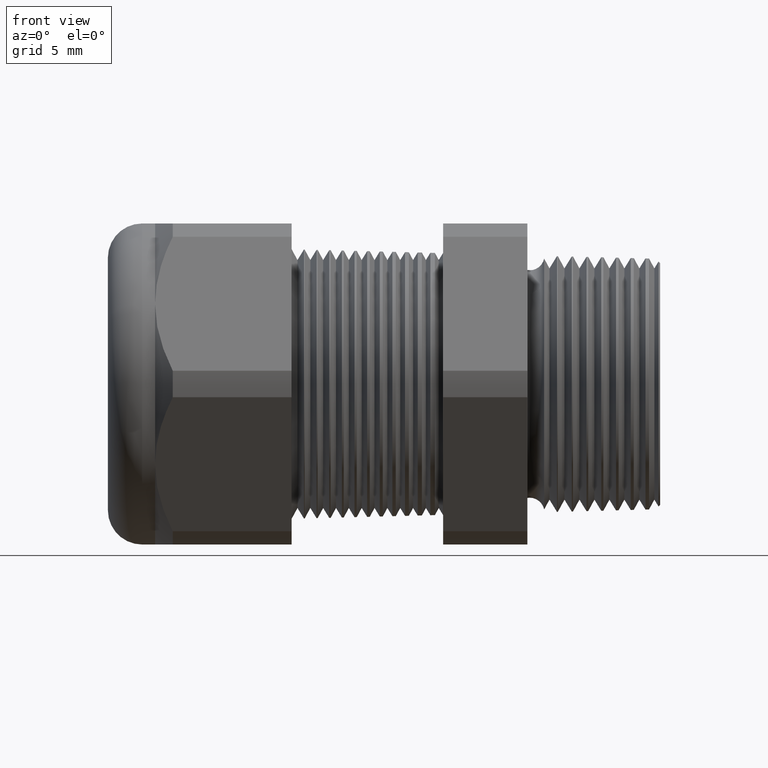
[diagram: clean part render]
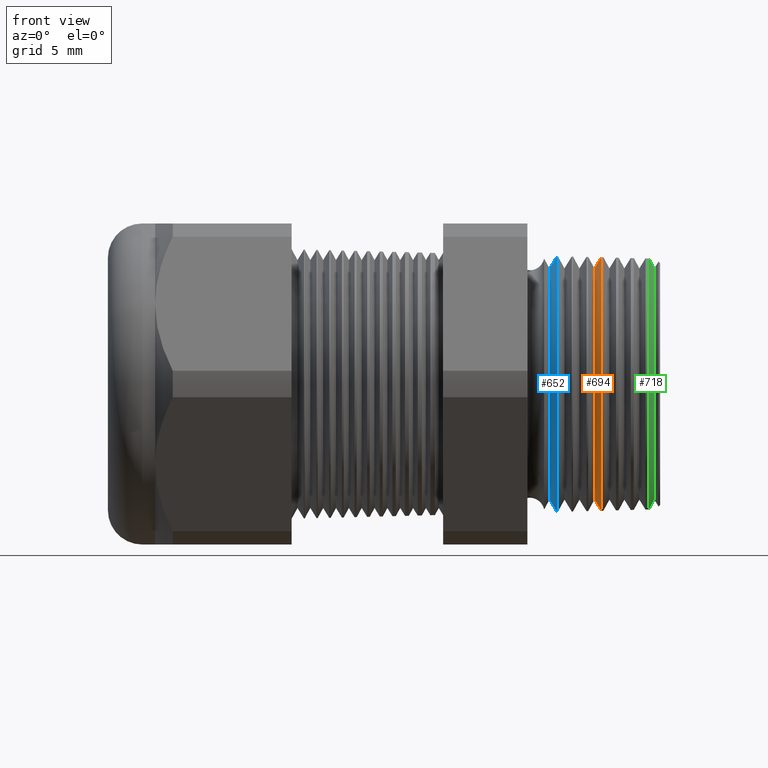
[diagram: same view with three faces highlighted in distinct colors, each labeled with its STEP entity id]
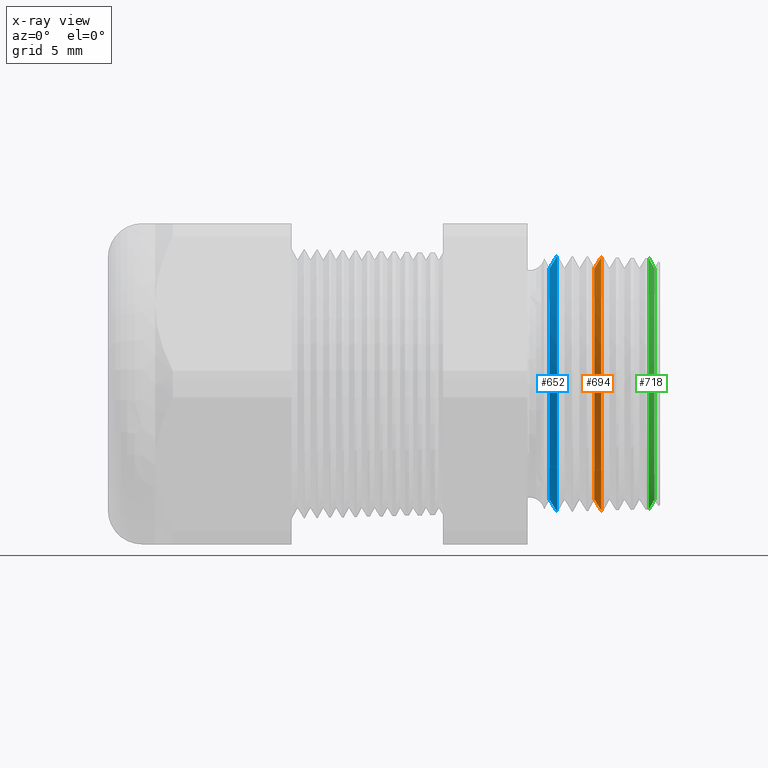
[diagram: x-ray of the same camera — body ghosted, the three highlighted faces saturated]
A machine part, front view with three faces highlighted in distinct colors.
The next image is the same camera in x-ray (body ghosted, the three faces saturated) — at least one of them is partly hidden behind the body in this view.
Their STEP definitions:

[orange] entity #694 — the highlighted conical surface has half-angle 58.5 deg.
#94 = EDGE_CURVE ( 'NONE', #1048, #1045, #1583, .T. ) ;
#691 = EDGE_CURVE ( 'NONE', #1017, #1016, #2470, .T. ) ;
#694 = ADVANCED_FACE ( 'NONE', ( #2466 ), #2465, .T. ) ;
#695 = EDGE_LOOP ( 'NONE', ( #696, #697, #747, #748 ) ) ;
#696 = ORIENTED_EDGE ( 'NONE', *, *, #1019, .F. ) ;
#697 = ORIENTED_EDGE ( 'NONE', *, *, #691, .T. ) ;
#747 = ORIENTED_EDGE ( 'NONE', *, *, #1050, .T. ) ;
#748 = ORIENTED_EDGE ( 'NONE', *, *, #94, .T. ) ;
#1016 = VERTEX_POINT ( 'NONE', #2996 ) ;
#1017 = VERTEX_POINT ( 'NONE', #3060 ) ;
#1019 = EDGE_CURVE ( 'NONE', #1017, #1045, #3059, .T. ) ;
#1045 = VERTEX_POINT ( 'NONE', #3083 ) ;
#1048 = VERTEX_POINT ( 'NONE', #3077 ) ;
#1050 = EDGE_CURVE ( 'NONE', #1016, #1048, #3076, .T. ) ;
#1579 = DIRECTION ( 'NONE',  ( 0.0000000000000000000, 0.0000000000000000000, -1.000000000000000000 ) ) ;
#1580 = DIRECTION ( 'NONE',  ( -1.000000000000000000, 0.0000000000000000000, 0.0000000000000000000 ) ) ;
#1581 = CARTESIAN_POINT ( 'NONE',  ( -0.1375819195166211300, 0.0000000000000000000, 0.0000000000000000000 ) ) ;
#1582 = AXIS2_PLACEMENT_3D ( 'NONE', #1581, #1580, #1579 ) ;
#1583 = CIRCLE ( 'NONE', #1582, 0.2960601360848354500 ) ;
#2460 = DIRECTION ( 'NONE',  ( 0.0000000000000000000, 0.0000000000000000000, -1.000000000000000000 ) ) ;
#2461 = DIRECTION ( 'NONE',  ( 1.000000000000000000, 0.0000000000000000000, 0.0000000000000000000 ) ) ;
#2462 = CARTESIAN_POINT ( 'NONE',  ( -0.1534707356790751800, 0.0000000000000000000, 0.0000000000000000000 ) ) ;
#2463 = AXIS2_PLACEMENT_3D ( 'NONE', #2462, #2461, #2460 ) ;
#2465 = CONICAL_SURFACE ( 'NONE', #2463, 0.2701319446236517000, 1.021017612416701600 ) ;
#2466 = FACE_OUTER_BOUND ( 'NONE', #695, .T. ) ;
#2467 = DIRECTION ( 'NONE',  ( 0.0000000000000000000, 0.0000000000000000000, -1.000000000000000000 ) ) ;
#2468 = DIRECTION ( 'NONE',  ( 1.000000000000000000, 0.0000000000000000000, 0.0000000000000000000 ) ) ;
#2469 = AXIS2_PLACEMENT_3D ( 'NONE', #2475, #2468, #2467 ) ;
#2470 = CIRCLE ( 'NONE', #2469, 0.2701319446236517000 ) ;
#2475 = CARTESIAN_POINT ( 'NONE',  ( -0.1534707356790751800, 0.0000000000000000000, 0.0000000000000000000 ) ) ;
#2996 = CARTESIAN_POINT ( 'NONE',  ( -0.1534707356790751800, 3.471800829982362700E-017, -0.2701319446236517000 ) ) ;
#3056 = DIRECTION ( 'NONE',  ( 0.5224985647159328100, 1.044183048100724200E-016, 0.8526401643541021700 ) ) ;
#3057 = VECTOR ( 'NONE', #3056, 39.37007874015748100 ) ;
#3058 = CARTESIAN_POINT ( 'NONE',  ( -0.1534707356790751800, 3.308162213308051400E-017, 0.2701319446236517000 ) ) ;
#3059 = LINE ( 'NONE', #3058, #3057 ) ;
#3060 = CARTESIAN_POINT ( 'NONE',  ( -0.1534707356790751800, 0.0000000000000000000, 0.2701319446236517000 ) ) ;
#3073 = DIRECTION ( 'NONE',  ( 0.5224985647159328100, 0.0000000000000000000, -0.8526401643541021700 ) ) ;
#3074 = VECTOR ( 'NONE', #3073, 39.37007874015748100 ) ;
#3075 = CARTESIAN_POINT ( 'NONE',  ( -0.1534707356790751800, 0.0000000000000000000, -0.2701319446236517000 ) ) ;
#3076 = LINE ( 'NONE', #3075, #3074 ) ;
#3077 = CARTESIAN_POINT ( 'NONE',  ( -0.1375819195166211300, 3.625690980114235700E-017, -0.2960601360848354500 ) ) ;
#3083 = CARTESIAN_POINT ( 'NONE',  ( -0.1375819195166211300, 0.0000000000000000000, 0.2960601360848354500 ) ) ;

[blue] entity #652 — the highlighted conical surface has half-angle 58.5 deg.
#649 = EDGE_CURVE ( 'NONE', #1122, #1121, #2402, .T. ) ;
#652 = ADVANCED_FACE ( 'NONE', ( #2397 ), #2396, .T. ) ;
#653 = EDGE_LOOP ( 'NONE', ( #654, #655, #656, #657 ) ) ;
#654 = ORIENTED_EDGE ( 'NONE', *, *, #1124, .F. ) ;
#655 = ORIENTED_EDGE ( 'NONE', *, *, #649, .T. ) ;
#656 = ORIENTED_EDGE ( 'NONE', *, *, #1130, .T. ) ;
#657 = ORIENTED_EDGE ( 'NONE', *, *, #4687, .T. ) ;
#1121 = VERTEX_POINT ( 'NONE', #3239 ) ;
#1122 = VERTEX_POINT ( 'NONE', #3238 ) ;
#1124 = EDGE_CURVE ( 'NONE', #1122, #1125, #3237, .T. ) ;
#1125 = VERTEX_POINT ( 'NONE', #3233 ) ;
#1128 = VERTEX_POINT ( 'NONE', #3227 ) ;
#1130 = EDGE_CURVE ( 'NONE', #1121, #1128, #3226, .T. ) ;
#2391 = DIRECTION ( 'NONE',  ( 0.0000000000000000000, 0.0000000000000000000, -1.000000000000000000 ) ) ;
#2392 = DIRECTION ( 'NONE',  ( 1.000000000000000000, 0.0000000000000000000, 0.0000000000000000000 ) ) ;
#2393 = CARTESIAN_POINT ( 'NONE',  ( -0.2584707356790751900, 0.0000000000000000000, 0.0000000000000000000 ) ) ;
#2394 = AXIS2_PLACEMENT_3D ( 'NONE', #2393, #2392, #2391 ) ;
#2396 = CONICAL_SURFACE ( 'NONE', #2394, 0.2701319446236517000, 1.021017612416701600 ) ;
#2397 = FACE_OUTER_BOUND ( 'NONE', #653, .T. ) ;
#2398 = DIRECTION ( 'NONE',  ( 0.0000000000000000000, 0.0000000000000000000, -1.000000000000000000 ) ) ;
#2399 = DIRECTION ( 'NONE',  ( 1.000000000000000000, 0.0000000000000000000, 0.0000000000000000000 ) ) ;
#2400 = CARTESIAN_POINT ( 'NONE',  ( -0.2584707356790751900, 0.0000000000000000000, 0.0000000000000000000 ) ) ;
#2401 = AXIS2_PLACEMENT_3D ( 'NONE', #2400, #2399, #2398 ) ;
#2402 = CIRCLE ( 'NONE', #2401, 0.2701319446236517000 ) ;
#3223 = DIRECTION ( 'NONE',  ( 0.5224985647159328100, 0.0000000000000000000, -0.8526401643541021700 ) ) ;
#3224 = VECTOR ( 'NONE', #3223, 39.37007874015748100 ) ;
#3225 = CARTESIAN_POINT ( 'NONE',  ( -0.2584707356790751900, 0.0000000000000000000, -0.2701319446236517000 ) ) ;
#3226 = LINE ( 'NONE', #3225, #3224 ) ;
#3227 = CARTESIAN_POINT ( 'NONE',  ( -0.2409236207239137100, 3.658831118766484200E-017, -0.2987662337674752400 ) ) ;
#3233 = CARTESIAN_POINT ( 'NONE',  ( -0.2409236207239137100, 0.0000000000000000000, 0.2987662337674752400 ) ) ;
#3234 = DIRECTION ( 'NONE',  ( 0.5224985647159328100, 1.044183048100724200E-016, 0.8526401643541021700 ) ) ;
#3235 = VECTOR ( 'NONE', #3234, 39.37007874015748100 ) ;
#3236 = CARTESIAN_POINT ( 'NONE',  ( -0.2584707356790751900, 3.308162213308051400E-017, 0.2701319446236517000 ) ) ;
#3237 = LINE ( 'NONE', #3236, #3235 ) ;
#3238 = CARTESIAN_POINT ( 'NONE',  ( -0.2584707356790751900, 0.0000000000000000000, 0.2701319446236517000 ) ) ;
#3239 = CARTESIAN_POINT ( 'NONE',  ( -0.2584707356790751900, 3.447728831238841300E-017, -0.2701319446236517000 ) ) ;
#3842 = DIRECTION ( 'NONE',  ( 0.0000000000000000000, 0.0000000000000000000, -1.000000000000000000 ) ) ;
#3843 = DIRECTION ( 'NONE',  ( -1.000000000000000000, 0.0000000000000000000, 0.0000000000000000000 ) ) ;
#3844 = CARTESIAN_POINT ( 'NONE',  ( -0.2409236207239137100, 0.0000000000000000000, 0.0000000000000000000 ) ) ;
#3845 = AXIS2_PLACEMENT_3D ( 'NONE', #3844, #3843, #3842 ) ;
#3846 = CIRCLE ( 'NONE', #3845, 0.2987662337674752400 ) ;
#4687 = EDGE_CURVE ( 'NONE', #1128, #1125, #3846, .T. ) ;

[green] entity #718 — the highlighted conical surface has half-angle 61.5 deg.
#718 = ADVANCED_FACE ( 'NONE', ( #2493 ), #2488, .T. ) ;
#719 = EDGE_LOOP ( 'NONE', ( #720, #721, #723, #775 ) ) ;
#720 = ORIENTED_EDGE ( 'NONE', *, *, #866, .F. ) ;
#721 = ORIENTED_EDGE ( 'NONE', *, *, #722, .F. ) ;
#722 = EDGE_CURVE ( 'NONE', #882, #881, #2545, .T. ) ;
#723 = ORIENTED_EDGE ( 'NONE', *, *, #909, .T. ) ;
#775 = ORIENTED_EDGE ( 'NONE', *, *, #4969, .T. ) ;
#866 = EDGE_CURVE ( 'NONE', #881, #867, #2717, .T. ) ;
#867 = VERTEX_POINT ( 'NONE', #2713 ) ;
#881 = VERTEX_POINT ( 'NONE', #2749 ) ;
#882 = VERTEX_POINT ( 'NONE', #2805 ) ;
#907 = VERTEX_POINT ( 'NONE', #2831 ) ;
#909 = EDGE_CURVE ( 'NONE', #882, #907, #2830, .T. ) ;
#2487 = CARTESIAN_POINT ( 'NONE',  ( -0.01347073567907516200, 0.0000000000000000000, 0.0000000000000000000 ) ) ;
#2488 = CONICAL_SURFACE ( 'NONE', #2549, 0.3005750624174817800, 1.073377489976501400 ) ;
#2493 = FACE_OUTER_BOUND ( 'NONE', #719, .T. ) ;
#2542 = DIRECTION ( 'NONE',  ( 0.0000000000000000000, 0.0000000000000000000, -1.000000000000000000 ) ) ;
#2543 = DIRECTION ( 'NONE',  ( 1.000000000000000000, 0.0000000000000000000, 0.0000000000000000000 ) ) ;
#2544 = AXIS2_PLACEMENT_3D ( 'NONE', #2487, #2543, #2542 ) ;
#2545 = CIRCLE ( 'NONE', #2544, 0.2701319446236517000 ) ;
#2546 = DIRECTION ( 'NONE',  ( 0.0000000000000000000, 0.0000000000000000000, 1.000000000000000000 ) ) ;
#2547 = DIRECTION ( 'NONE',  ( -1.000000000000000000, 0.0000000000000000000, 0.0000000000000000000 ) ) ;
#2548 = CARTESIAN_POINT ( 'NONE',  ( -0.02999999999999995400, 0.0000000000000000000, 0.0000000000000000000 ) ) ;
#2549 = AXIS2_PLACEMENT_3D ( 'NONE', #2548, #2547, #2546 ) ;
#2713 = CARTESIAN_POINT ( 'NONE',  ( -0.02596160015483819600, 3.591223426922241700E-017, -0.2931372551565009600 ) ) ;
#2714 = DIRECTION ( 'NONE',  ( -0.4771587602596184000, 1.076240564057388400E-016, -0.8788171126619600500 ) ) ;
#2715 = VECTOR ( 'NONE', #2714, 39.37007874015747400 ) ;
#2716 = CARTESIAN_POINT ( 'NONE',  ( -0.02999999999999995400, 3.680982880930849200E-017, -0.3005750624174817800 ) ) ;
#2717 = LINE ( 'NONE', #2716, #2715 ) ;
#2749 = CARTESIAN_POINT ( 'NONE',  ( -0.01347073567907516200, 3.449029112845275300E-017, -0.2701319446236517000 ) ) ;
#2805 = CARTESIAN_POINT ( 'NONE',  ( -0.01347073567907516200, 0.0000000000000000000, 0.2701319446236517000 ) ) ;
#2827 = DIRECTION ( 'NONE',  ( -0.4771587602596184000, 0.0000000000000000000, 0.8788171126619600500 ) ) ;
#2828 = VECTOR ( 'NONE', #2827, 39.37007874015747400 ) ;
#2829 = CARTESIAN_POINT ( 'NONE',  ( -0.02999999999999995400, 0.0000000000000000000, 0.3005750624174817800 ) ) ;
#2830 = LINE ( 'NONE', #2829, #2828 ) ;
#2831 = CARTESIAN_POINT ( 'NONE',  ( -0.02596160015483819600, 0.0000000000000000000, 0.2931372551565009600 ) ) ;
#4395 = DIRECTION ( 'NONE',  ( 0.0000000000000000000, 0.0000000000000000000, 1.000000000000000000 ) ) ;
#4396 = DIRECTION ( 'NONE',  ( 1.000000000000000000, 0.0000000000000000000, 0.0000000000000000000 ) ) ;
#4397 = AXIS2_PLACEMENT_3D ( 'NONE', #4403, #4396, #4395 ) ;
#4398 = CIRCLE ( 'NONE', #4397, 0.2931372551565009600 ) ;
#4403 = CARTESIAN_POINT ( 'NONE',  ( -0.02596160015483819600, 0.0000000000000000000, 0.0000000000000000000 ) ) ;
#4969 = EDGE_CURVE ( 'NONE', #907, #867, #4398, .T. ) ;